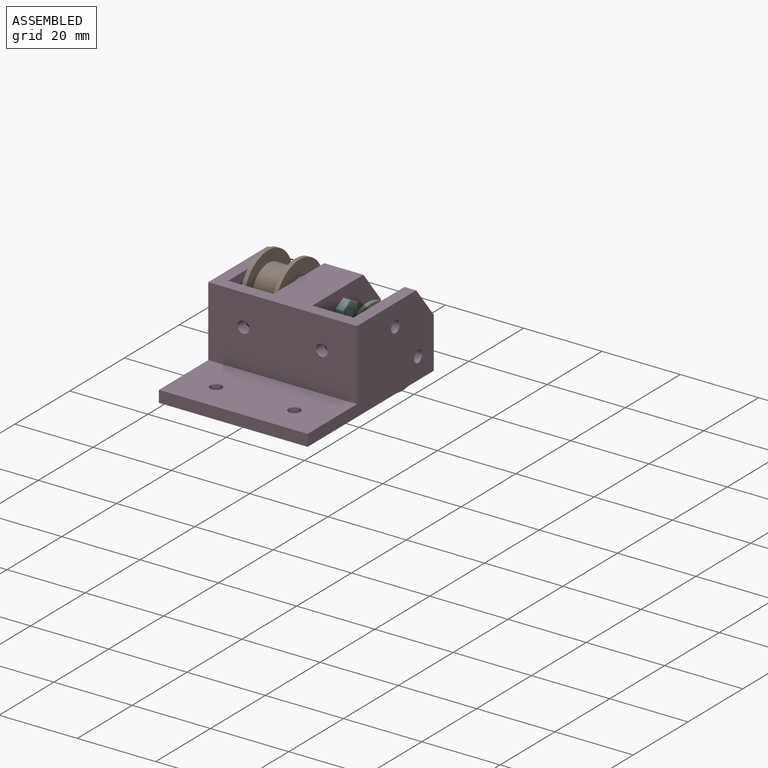
[diagram: assembled view]
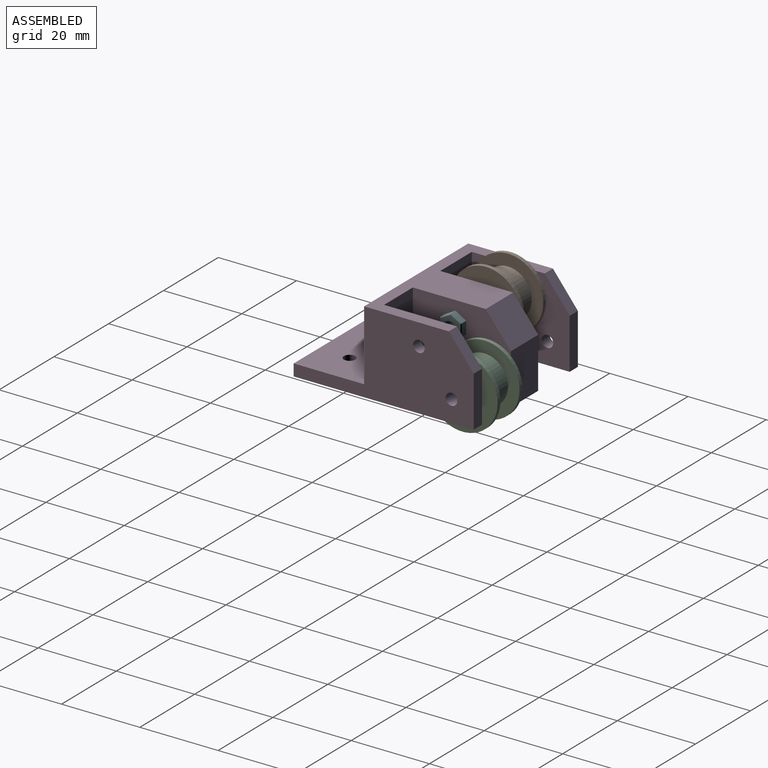
[diagram: assembled view, second angle]
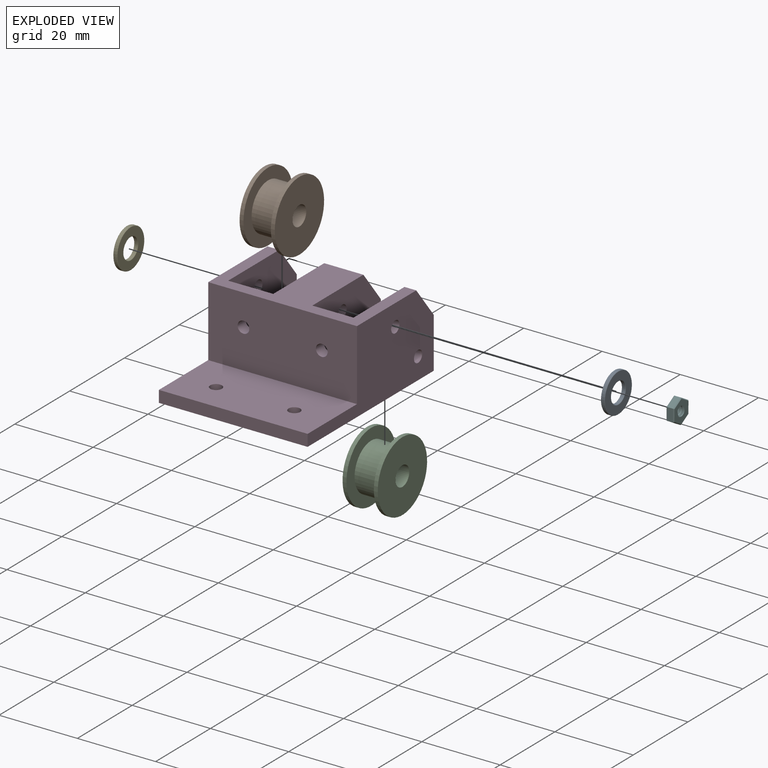
[diagram: exploded view]
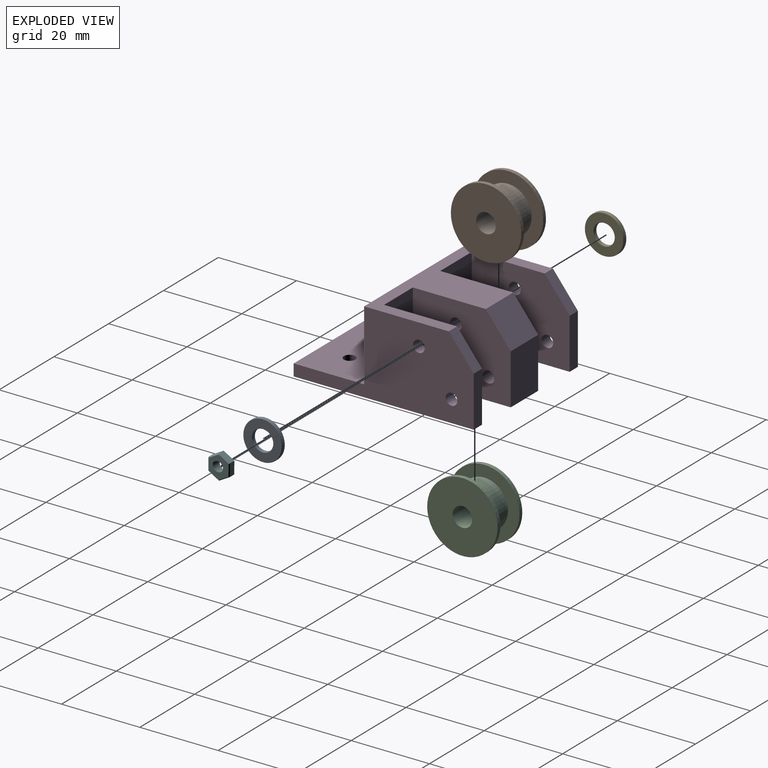
[diagram: exploded view, second angle]
ASSEMBLY  parts=6 mates=5
PART A: 8 faces, bbox 10.8x10.8x1 mm
  f0: cylinder r=2.65mm len=5.3mm, axis (0,0,-1), area 13.3mm2, adj f4,f6
  f1: cylinder r=5mm len=10mm, axis (0,0,-1), area 25.1mm2, adj f5,f7
  f2: plane 9.8x9.8mm, normal (0,0,1), area 51.7mm2, adj f6,f7
  f3: plane 9.8x9.8mm, normal (0,0,-1), area 51.7mm2, adj f4,f5
  f4: torus R=2.75mm, axis (0,0,1), area 2.7mm2, adj f0,f3
  f5: torus R=4.9mm, axis (0,0,1), area 4.9mm2, adj f1,f3
  f6: torus R=2.75mm, axis (0,0,1), area 2.7mm2, adj f0,f2
  f7: torus R=4.9mm, axis (0,0,1), area 4.9mm2, adj f1,f2
PART B: 8 faces, bbox 18x18x9 mm
  f0: cylinder r=2.5mm len=9mm, axis (0,0,-1), area 141.4mm2, adj f1,f7
  f1: plane 18x18mm, normal (0,0,1), area 234.8mm2, adj f0,f2
  f2: cylinder r=9mm len=18mm, axis (0,0,-1), area 56.5mm2, adj f1,f3
  f3: plane 18x18mm, normal (0,0,-1), area 139.5mm2, adj f2,f4
  f4: cylinder r=6.05mm len=12.1mm, axis (0,0,-1), area 266.1mm2, adj f3,f5
  f5: plane 18x18mm, normal (0,0,1), area 139.5mm2, adj f4,f6
  f6: cylinder r=9mm len=18mm, axis (0,0,-1), area 56.5mm2, adj f5,f7
  f7: plane 18x18mm, normal (0,0,-1), area 234.8mm2, adj f0,f6
PART C: same geometry as B
PART D: 29 faces, bbox 38x46x21 mm
  f0: plane 46x21mm, normal (-1,0,0), area 602.1mm2, adj f2,f9,f10,f13,f14,f18,f23,f24
  f1: plane 46x21mm, normal (1,0,0), area 602.1mm2, adj f2,f9,f10,f13,f14,f19,f20,f21
  f2: plane 38x21.62mm, normal (0,0,1), area 412mm2, adj f0,f1,f3,f4,f5,f6,f7,f8
  f3: plane 25x21mm, normal (-1,0,0), area 485.1mm2, adj f2,f7,f13,f17,f26,f27,f28
  f4: plane 25x21mm, normal (1,0,0), area 485.1mm2, adj f2,f8,f13,f17,f26,f27,f28
  f5: plane 25x21mm, normal (1,0,0), area 485.1mm2, adj f2,f7,f13,f18,f23,f24,f25
  f6: plane 25x21mm, normal (-1,0,0), area 485.1mm2, adj f2,f8,f13,f19,f20,f21,f22
  f7: plane 21x11.5mm, normal (0,1,0), area 234.4mm2, adj f2,f3,f5,f13,f15
  f8: plane 21x10.5mm, normal (0,1,0), area 213.4mm2, adj f2,f4,f6,f13,f16
  f9: plane 38x18mm, normal (0,0,1), area 669.9mm2, adj f0,f1,f10,f11,f12,f14
  f10: plane 38x3mm, normal (0,-1,0), area 114mm2, adj f0,f1,f9,f13
  f11: cylinder r=1.5mm len=3mm, axis (0,0,1), area 28.3mm2, adj f9,f13
  f12: cylinder r=1.5mm len=3mm, axis (0,0,1), area 28.3mm2, adj f9,f13
  f13: plane 46x38mm, normal (0,0,-1), area 1183.9mm2, adj f0,f1,f3,f4,f5,f6,f7,f8
  f14: plane 38x18mm, normal (0,-1,0), area 669.9mm2, adj f0,f1,f2,f9,f15,f16
  f15: cylinder r=1.5mm len=3mm, axis (0,1,0), area 28.3mm2, adj f7,f14
  f16: cylinder r=1.5mm len=3mm, axis (0,1,0), area 28.3mm2, adj f8,f14
  f17: plane 12.93x10mm, normal (0,1,0), area 129.3mm2, adj f3,f4,f13,f26
  f18: plane 12.93x3mm, normal (0,1,0), area 38.8mm2, adj f0,f5,f13,f23
  f19: plane 12.93x3mm, normal (0,1,0), area 38.8mm2, adj f1,f6,f13,f20
  f20: plane 8.07x6.38mm, normal (0,0.78,0.62), area 30.8mm2, adj f1,f2,f6,f19
  f21: cylinder r=1.5mm len=3mm, axis (-1,0,0), area 28.3mm2, adj f1,f6
  f22: cylinder r=1.5mm len=3mm, axis (-1,0,0), area 28.3mm2, adj f1,f6
  f23: plane 8.07x6.38mm, normal (0,0.78,0.62), area 30.8mm2, adj f0,f2,f5,f18
  f24: cylinder r=1.5mm len=3mm, axis (-1,0,0), area 28.3mm2, adj f0,f5
  f25: cylinder r=1.5mm len=3mm, axis (-1,0,0), area 28.3mm2, adj f0,f5
  f26: plane 10x8.07mm, normal (0,0.78,0.62), area 102.8mm2, adj f2,f3,f4,f17
  f27: cylinder r=1.5mm len=10mm, axis (-1,0,0), area 94.2mm2, adj f3,f4
  f28: cylinder r=1.5mm len=10mm, axis (-1,0,0), area 94.2mm2, adj f3,f4
PART E: same geometry as A
PART F: 23 faces, bbox 2.9x5.8x6.6 mm
  f0: cylinder r=1.13mm len=2.25mm, axis (1,0,0), area 5mm2, adj f7,f8,f21,f22
  f1: plane 2.74x1.61mm, normal (0,-0.51,0.86), area 5.1mm2, adj f2,f6,f14,f18
  f2: plane 3.18x1.6mm, normal (0,-1,-0.01), area 5.1mm2, adj f1,f3,f12,f16
  f3: plane 2.77x1.6mm, normal (0,-0.49,-0.87), area 5.1mm2, adj f2,f4,f10,f15
  f4: plane 2.74x1.61mm, normal (0,0.51,-0.86), area 5.1mm2, adj f3,f5,f9,f17
  f5: plane 3.18x1.6mm, normal (0,1,0.01), area 5.1mm2, adj f4,f6,f11,f19
  f6: plane 2.77x1.6mm, normal (0,0.49,0.87), area 5.1mm2, adj f1,f5,f13,f20
  f7: plane 6.12x5.36mm, normal (-1,0,0), area 17.4mm2, adj f0,f9,f10,f11,f12,f13,f14,f21
  f8: plane 6.12x5.36mm, normal (1,0,0), area 17.4mm2, adj f0,f15,f16,f17,f18,f19,f20,f21
  f9: plane 2.74x1.73mm, normal (-0.71,0.36,-0.61), area 0.9mm2, adj f4,f7,f10,f11
  f10: plane 2.77x1.68mm, normal (-0.71,-0.35,-0.62), area 0.9mm2, adj f3,f7,f9,f12
  f11: plane 3.18x0.23mm, normal (-0.71,0.71,0.01), area 0.9mm2, adj f5,f7,f9,f13
  f12: plane 3.18x0.23mm, normal (-0.71,-0.71,-0.01), area 0.9mm2, adj f2,f7,f10,f14
  f13: plane 2.77x1.68mm, normal (-0.71,0.35,0.62), area 0.9mm2, adj f6,f7,f11,f14
  f14: plane 2.74x1.73mm, normal (-0.71,-0.36,0.61), area 0.9mm2, adj f1,f7,f12,f13
  f15: plane 2.77x1.68mm, normal (0.71,-0.35,-0.62), area 0.9mm2, adj f3,f8,f16,f17
  f16: plane 3.18x0.23mm, normal (0.71,-0.71,-0.01), area 0.9mm2, adj f2,f8,f15,f18
  f17: plane 2.74x1.73mm, normal (0.71,0.36,-0.61), area 0.9mm2, adj f4,f8,f15,f19
  f18: plane 2.74x1.73mm, normal (0.71,-0.36,0.61), area 0.9mm2, adj f1,f8,f16,f20
  f19: plane 3.18x0.23mm, normal (0.71,0.71,0.01), area 0.9mm2, adj f5,f8,f17,f20
  f20: plane 2.77x1.68mm, normal (0.71,0.35,0.62), area 0.9mm2, adj f6,f8,f18,f19
  f21: bspline ~3.64x3.15mm, area 11.1mm2, adj f0,f7,f8,f22
  f22: bspline ~3.64x3.15mm, area 11.1mm2, adj f0,f7,f8,f21
PLACE A rot(axis=(-0.7,-0.16,0.7),161.8deg) t=(14.03,40.63,9.73)mm
PLACE B rot(axis=(0.65,-0.41,-0.65),135.9deg) t=(8.53,59.57,16.28)mm
PLACE C rot(axis=(0.71,0,-0.71),180deg) t=(29.03,67.88,6.28)mm
PLACE D t=(-16.56,25.57,3.78)mm
PLACE E rot(axis=(-0.7,0.16,-0.7),161.8deg) t=(3.03,42.67,5.51)mm
PLACE F rot(axis=(0,1,0),180deg) t=(24.03,59.57,16.28)mm
MATE revolute E.f0 <-> B.f0  axis (1,0,0) through (4.03,59.57,16.28)mm
MATE revolute F.f0 <-> D.f22  axis (-1,0,0) through (24.03,59.57,16.28)mm
MATE revolute D.f22 <-> B.f0  axis (-1,0,0) through (14.03,59.57,16.28)mm
MATE revolute A.f0 <-> B.f0  axis (-1,0,0) through (13.03,59.57,16.28)mm
MATE revolute C.f0 <-> D.f21  axis (1,0,0) through (33.53,67.88,6.28)mm
